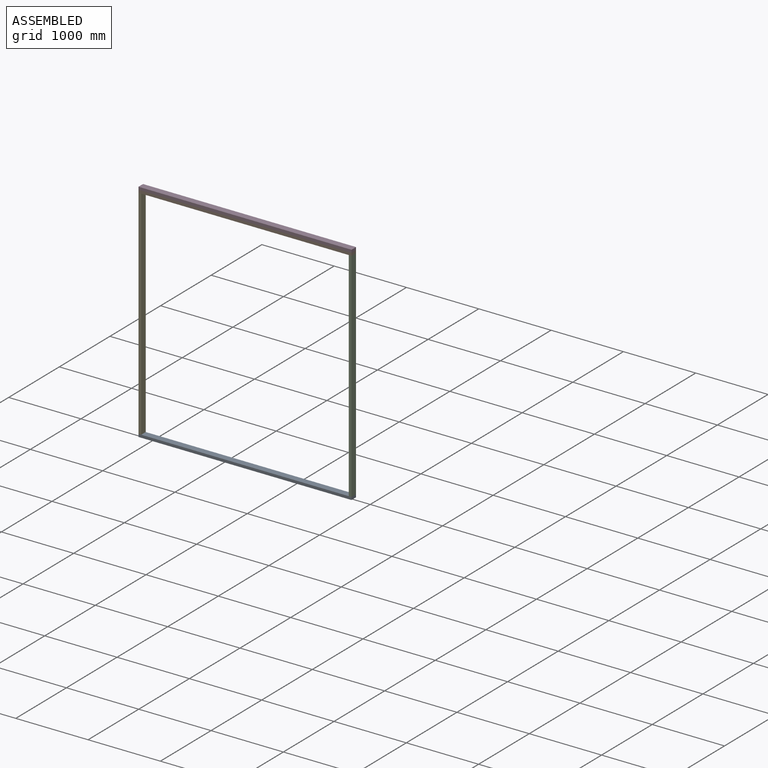
[diagram: assembled view]
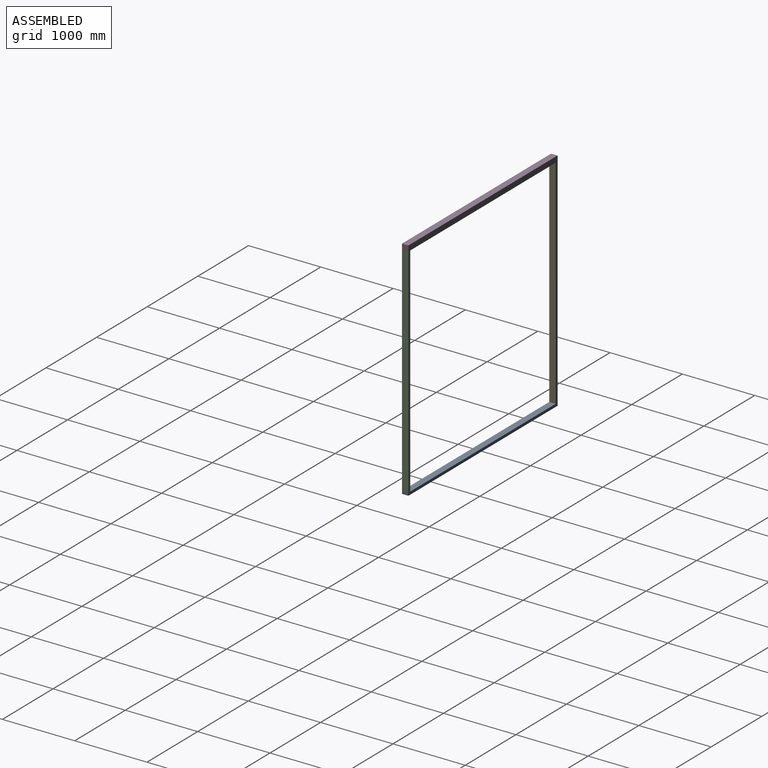
[diagram: assembled view, second angle]
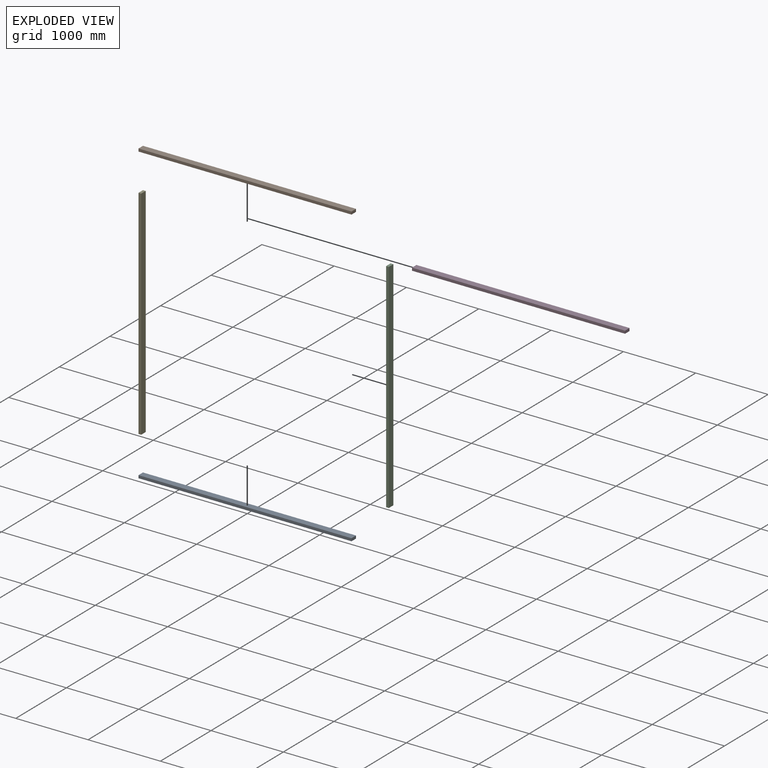
[diagram: exploded view]
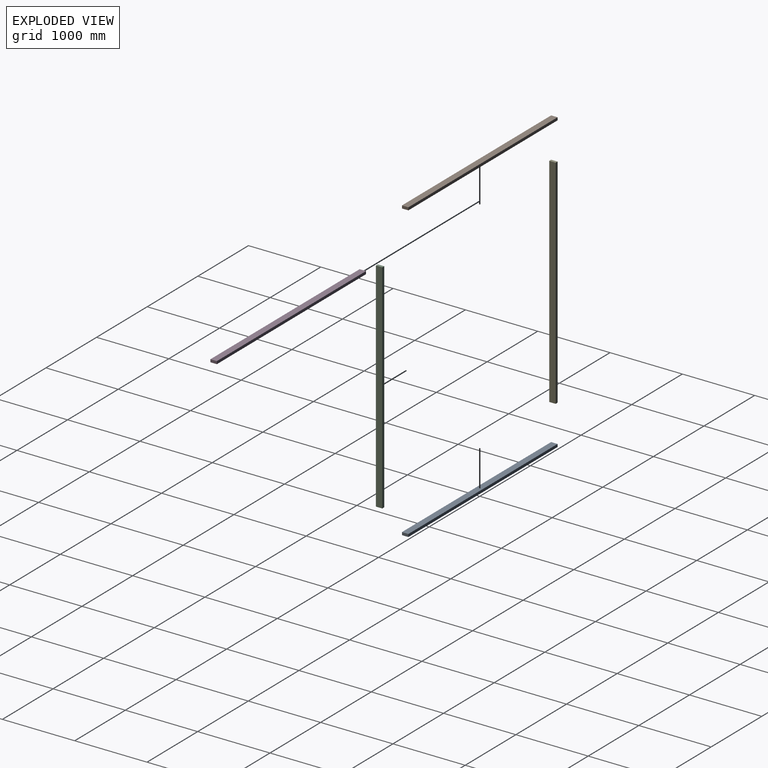
[diagram: exploded view, second angle]
ASSEMBLY  parts=5 mates=6
PART A: 6 faces, bbox 2946.4x88.9x38.1 mm
  f0: plane 2946.4x38.1mm, normal (0,-1,0), area 112257.8mm2, adj f1,f3,f4,f5
  f1: plane 88.9x38.1mm, normal (1,0,0), area 3387.1mm2, adj f0,f2,f4,f5
  f2: plane 2946.4x38.1mm, normal (0,1,0), area 112257.8mm2, adj f1,f3,f4,f5
  f3: plane 88.9x38.1mm, normal (-1,0,0), area 3387.1mm2, adj f0,f2,f4,f5
  f4: plane 2946.4x88.9mm, normal (0,0,1), area 261935mm2, adj f0,f1,f2,f3
  f5: plane 2946.4x88.9mm, normal (0,0,-1), area 261935mm2, adj f0,f1,f2,f3
PART B: same geometry as A
PART C: 6 faces, bbox 88.9x38.1x3013.5 mm
  f0: plane 88.9x38.1mm, normal (0,0,-1), area 3387.1mm2, adj f1,f3,f4,f5
  f1: plane 3013.46x38.1mm, normal (1,0,0), area 114812.7mm2, adj f0,f2,f4,f5
  f2: plane 88.9x38.1mm, normal (0,0,1), area 3387.1mm2, adj f1,f3,f4,f5
  f3: plane 3013.46x38.1mm, normal (-1,0,0), area 114812.7mm2, adj f0,f2,f4,f5
  f4: plane 3013.46x88.9mm, normal (0,-1,0), area 267896.2mm2, adj f0,f1,f2,f3
  f5: plane 3013.46x88.9mm, normal (0,1,0), area 267896.2mm2, adj f0,f1,f2,f3
PART D: same geometry as A
PART E: same geometry as C
PLACE A t=(0,0,-38.1)mm
PLACE B rot(axis=(-1,0,0),180deg) t=(0,0,3051.56)mm
PLACE C rot(axis=(0,0,-1),90deg) t=(1473.2,0,1506.73)mm
PLACE D rot(axis=(-1,0,0),180deg) t=(0,0,3089.66)mm
PLACE E rot(axis=(0,0,-1),90deg) t=(-1435.1,0,1506.73)mm
MATE planar B.f3 <-> E.f4  axis (-1,0,0) through (-1473.2,0,3032.51)mm
MATE planar E.f4 <-> A.f3  axis (-1,0,0) through (-1473.2,0,1506.73)mm
MATE planar B.f4 <-> E.f2  axis (0,0,-1) through (0,0,3013.46)mm
MATE planar B.f2 <-> E.f1  axis (0,-1,0) through (0,-44.45,3032.51)mm
MATE planar E.f0 <-> A.f4  axis (0,0,-1) through (-1454.15,0,0)mm
MATE planar E.f1 <-> A.f0  axis (0,-1,0) through (-1454.15,-44.45,1506.73)mm
